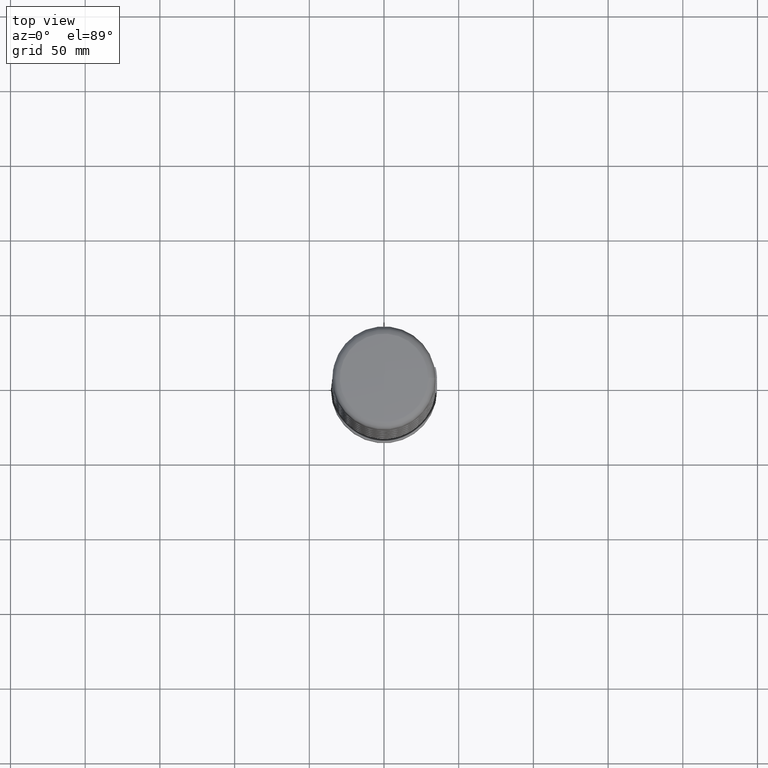
[diagram: clean part render]
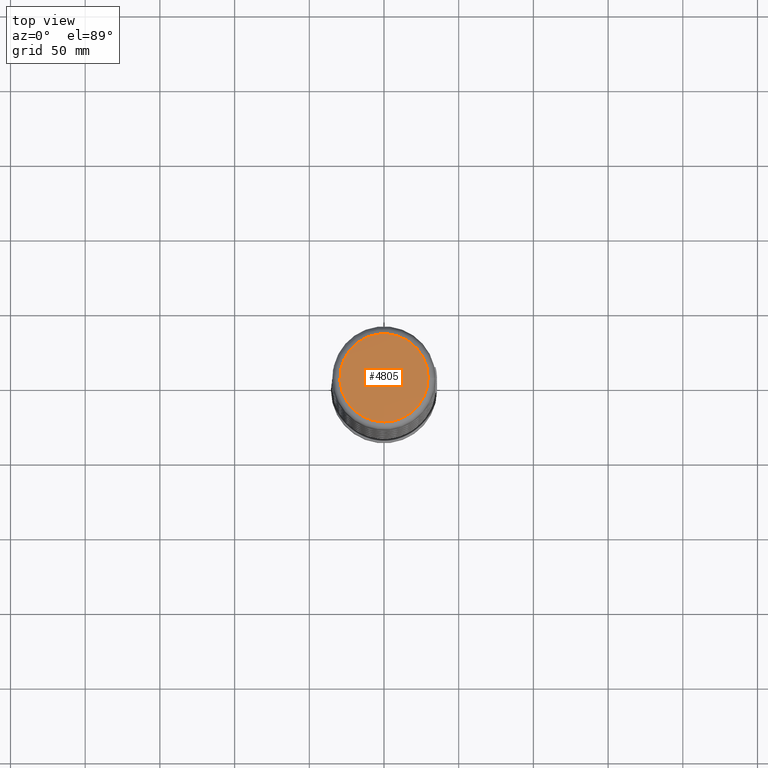
[diagram: same view with one face highlighted and labeled with its STEP entity id]
A machine part, top view. The second image highlights one B-rep face of the part: STEP entity #4805.
In plain terms, the highlighted spherical surface has radius 291.952 mm.
Its self-contained STEP definition (entity closure, byte-faithful):
#29=SPHERICAL_SURFACE('',#20831,291.951728391489);
#4805=ADVANCED_FACE('',(#6501),#29,.T.);
#6501=FACE_OUTER_BOUND('',#7624,.T.);
#7624=EDGE_LOOP('',(#10471));
#10471=ORIENTED_EDGE('',*,*,#17008,.T.);
#14807=VERTEX_POINT('',#30937);
#17008=EDGE_CURVE('',#14807,#14807,#19260,.T.);
#19260=CIRCLE('',#20830,29.5568128385737);
#20830=AXIS2_PLACEMENT_3D('',#30936,#24528,#24529);
#20831=AXIS2_PLACEMENT_3D('',#30938,#24530,#24531);
#24528=DIRECTION('',(0.,0.,1.));
#24529=DIRECTION('',(1.,0.,0.));
#24530=DIRECTION('',(0.,-6.12323399573677E-017,1.));
#24531=DIRECTION('',(0.,-1.,0.));
#30936=CARTESIAN_POINT('',(0.,0.,420.5));
#30937=CARTESIAN_POINT('',(29.5568128385737,0.,420.5));
#30938=CARTESIAN_POINT('',(0.,0.,130.048271608511));